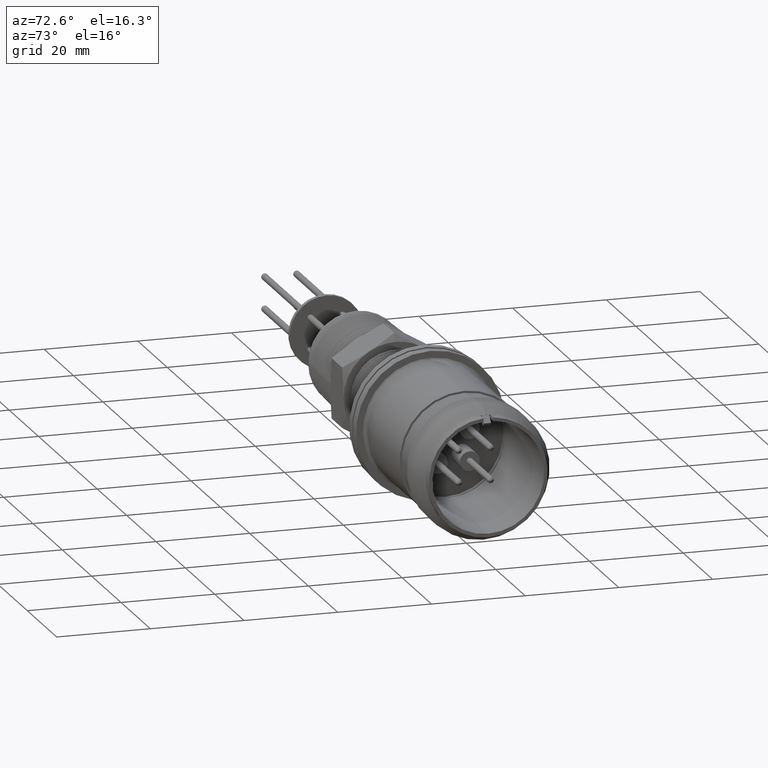
[diagram: clean part render]
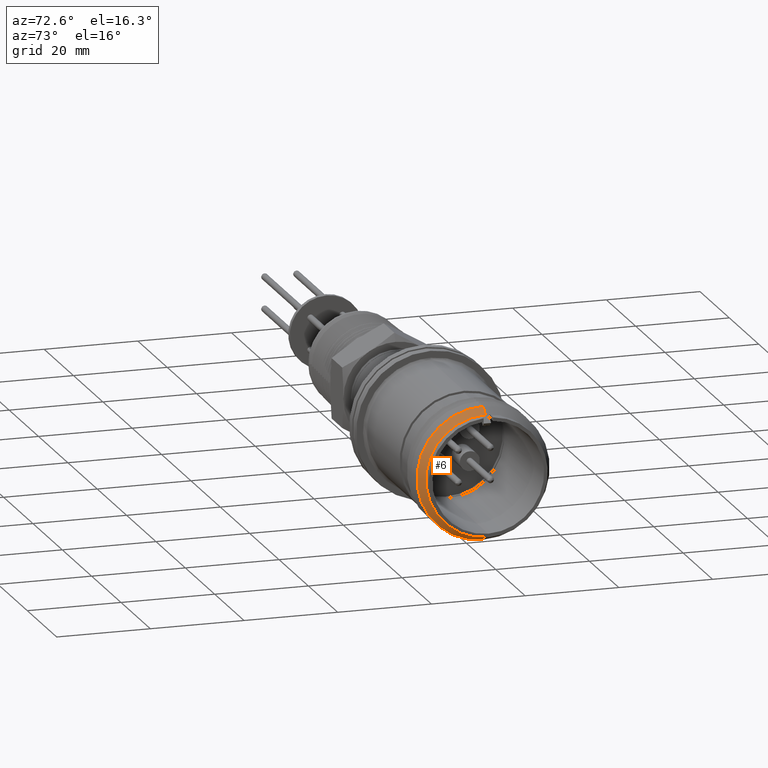
[diagram: same view with one face highlighted and labeled with its STEP entity id]
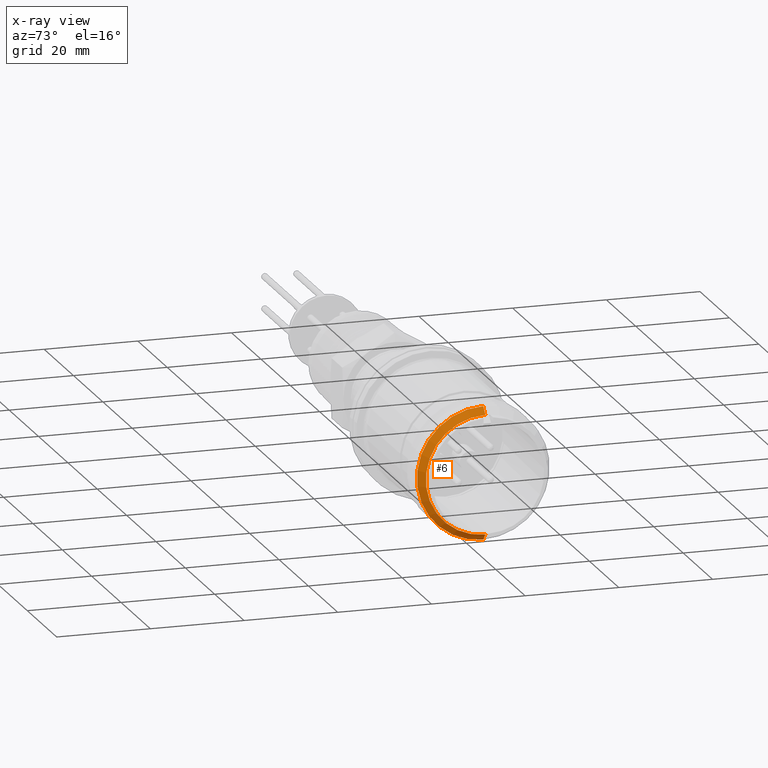
[diagram: x-ray of the same camera — body ghosted, the highlighted face saturated]
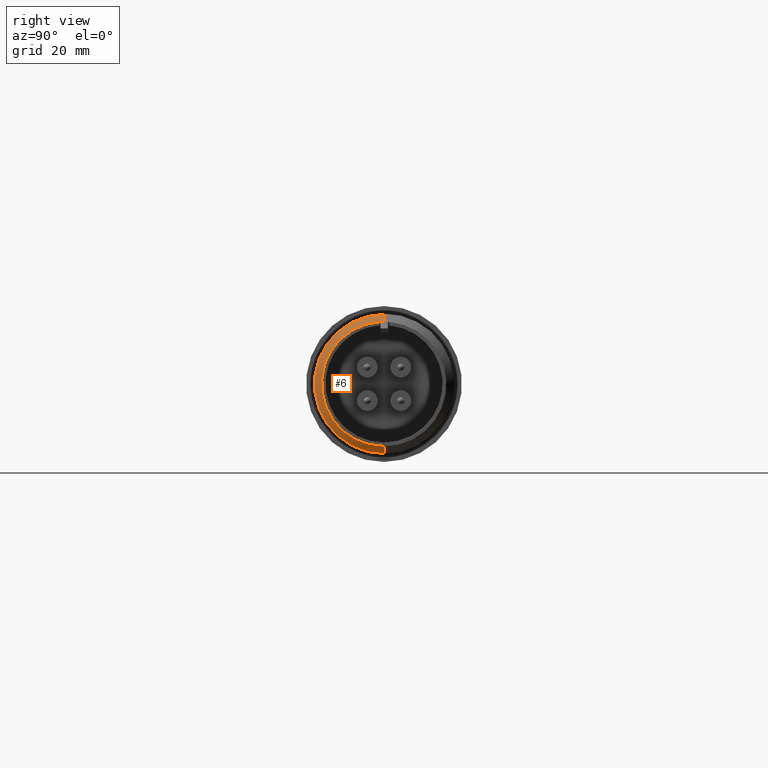
[diagram: same view with one face highlighted and labeled with its STEP entity id]
A machine part, auxiliary view. The second image highlights one B-rep face of the part: STEP entity #6.
The next image is the same camera in x-ray: the body ghosted, the highlighted face saturated — about 0% of this face is hidden behind the body in this view.
A second angle (right view) of the same face is appended — the face is thin or edge-on in the first view.
In plain terms, the highlighted conical surface has half-angle 46.432 deg.
Its self-contained STEP definition (entity closure, byte-faithful):
#6 = ADVANCED_FACE ( 'NONE', ( #7646 ), #7652, .T. ) ;
#226 = CARTESIAN_POINT ( 'NONE',  ( 2.815094641439886300, -2.769364216721786600E-016, 0.5577199071735713400 ) ) ;
#240 = CARTESIAN_POINT ( 'NONE',  ( 2.869999999999999700, -2.076145512658808800E-016, -0.4999999999999969500 ) ) ;
#899 = VECTOR ( 'NONE', #2413, 39.37007874015748900 ) ;
#902 = LINE ( 'NONE', #2392, #899 ) ;
#959 = VECTOR ( 'NONE', #3949, 39.37007874015748100 ) ;
#961 = LINE ( 'NONE', #3950, #959 ) ;
#1305 = EDGE_LOOP ( 'NONE', ( #7130, #7398, #6843, #6715 ) ) ;
#2104 = DIRECTION ( 'NONE',  ( 0.0000000000000000000, -0.0001280605891306732400, -0.9999999918002427900 ) ) ;
#2105 = DIRECTION ( 'NONE',  ( 1.000000000000000000, 8.523043429748643100E-017, 2.529733082591037800E-016 ) ) ;
#2106 = CARTESIAN_POINT ( 'NONE',  ( 2.815094641439886300, -2.769364216721786600E-016, 3.824587191129968100E-015 ) ) ;
#2139 = DIRECTION ( 'NONE',  ( 0.0000000000000000000, 0.0000000000000000000, 1.000000000000000000 ) ) ;
#2140 = DIRECTION ( 'NONE',  ( 1.000000000000000000, 8.523043429748643100E-017, 2.529733082591037800E-016 ) ) ;
#2141 = CARTESIAN_POINT ( 'NONE',  ( 2.869999999999999700, -2.722561085951481500E-016, 3.803290741361643500E-015 ) ) ;
#2392 = CARTESIAN_POINT ( 'NONE',  ( 2.815094641439886300, -2.769364216721786600E-016, 0.5577199071735712300 ) ) ;
#2413 = DIRECTION ( 'NONE',  ( -0.6892207291286830400, -1.621233160496908700E-020, 0.7245514381597253400 ) ) ;
#2597 = EDGE_CURVE ( 'NONE', #6877, #6742, #6178, .T. ) ;
#2605 = EDGE_CURVE ( 'NONE', #6780, #7491, #6170, .T. ) ;
#3435 = CARTESIAN_POINT ( 'NONE',  ( 2.815094641439886300, -2.769364216721786600E-016, 3.824587191129968100E-015 ) ) ;
#3436 = DIRECTION ( 'NONE',  ( -1.000000000000000000, -2.352269878107818500E-020, -1.836841353602784700E-016 ) ) ;
#3461 = DIRECTION ( 'NONE',  ( 0.0000000000000000000, 0.0000000000000000000, 1.000000000000000000 ) ) ;
#3949 = DIRECTION ( 'NONE',  ( -0.6892207291286829300, 8.871574762438696300E-017, -0.7245514381597256700 ) ) ;
#3950 = CARTESIAN_POINT ( 'NONE',  ( 2.815094641439886300, -2.086354317580918100E-016, -0.5577199071735635700 ) ) ;
#5217 = AXIS2_PLACEMENT_3D ( 'NONE', #3435, #3436, #3461 ) ;
#5300 = EDGE_CURVE ( 'NONE', #6742, #7491, #961, .T. ) ;
#5337 = EDGE_CURVE ( 'NONE', #6877, #6780, #902, .T. ) ;
#5649 = CARTESIAN_POINT ( 'NONE',  ( 2.869999999999999700, -2.722561085951481500E-016, 0.5000000000000045500 ) ) ;
#5834 = CARTESIAN_POINT ( 'NONE',  ( 2.815094641439886300, -2.086354317580918100E-016, -0.5577199071735634600 ) ) ;
#6170 = CIRCLE ( 'NONE', #6497, 0.5577199071735673400 ) ;
#6178 = CIRCLE ( 'NONE', #6503, 0.5000000000000007800 ) ;
#6497 = AXIS2_PLACEMENT_3D ( 'NONE', #2106, #2105, #2104 ) ;
#6503 = AXIS2_PLACEMENT_3D ( 'NONE', #2141, #2140, #2139 ) ;
#6715 = ORIENTED_EDGE ( 'NONE', *, *, #2605, .T. ) ;
#6742 = VERTEX_POINT ( 'NONE', #240 ) ;
#6780 = VERTEX_POINT ( 'NONE', #226 ) ;
#6843 = ORIENTED_EDGE ( 'NONE', *, *, #5337, .T. ) ;
#6877 = VERTEX_POINT ( 'NONE', #5649 ) ;
#7130 = ORIENTED_EDGE ( 'NONE', *, *, #5300, .F. ) ;
#7398 = ORIENTED_EDGE ( 'NONE', *, *, #2597, .F. ) ;
#7491 = VERTEX_POINT ( 'NONE', #5834 ) ;
#7646 = FACE_OUTER_BOUND ( 'NONE', #1305, .T. ) ;
#7652 = CONICAL_SURFACE ( 'NONE', #5217, 0.5577199071735673400, 0.8103833467955112700 ) ;